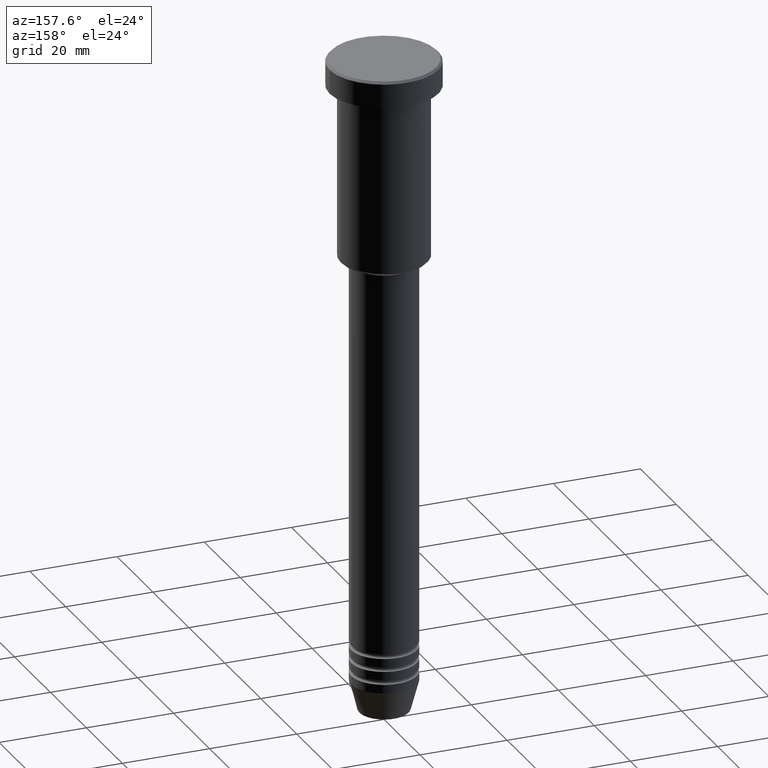
[diagram: clean part render]
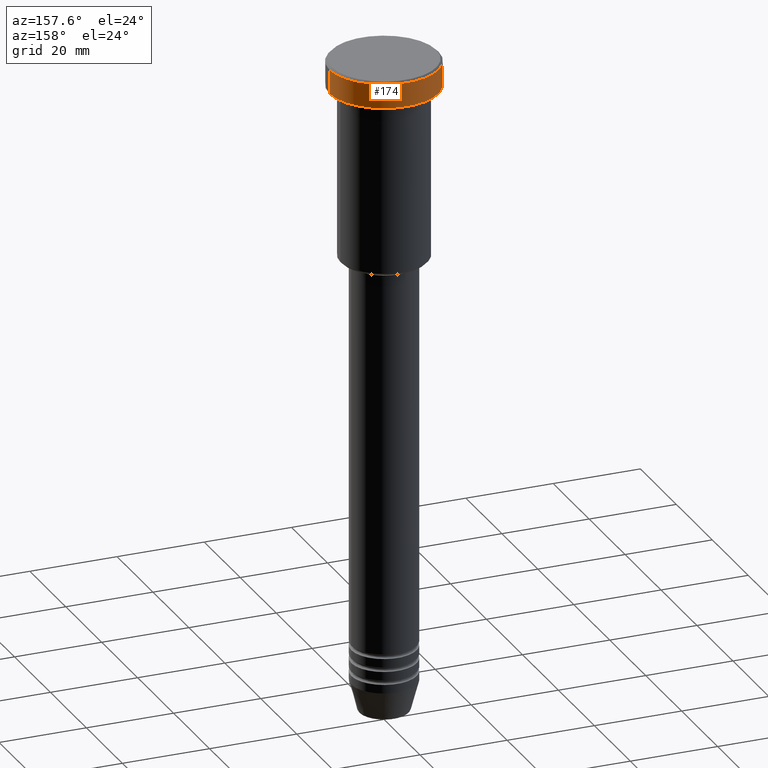
[diagram: same view with one face highlighted and labeled with its STEP entity id]
A machine part, auxiliary view. The second image highlights one B-rep face of the part: STEP entity #174.
In plain terms, the highlighted cylindrical surface (partial cylindrical patch) has radius 12.5 mm, axis along (-0, -0, 1).
Its self-contained STEP definition (entity closure, byte-faithful):
#48 = CARTESIAN_POINT ( 'NONE',  ( 0.000000000000000000, 0.000000000000000000, -0.5000000000000056621 ) ) ;
#56 = CARTESIAN_POINT ( 'NONE',  ( 0.000000000000000000, 0.000000000000000000, -5.999999999999996447 ) ) ;
#59 = DIRECTION ( 'NONE',  ( -0.000000000000000000, -0.000000000000000000, 1.000000000000000000 ) ) ;
#65 = ORIENTED_EDGE ( 'NONE', *, *, #1145, .T. ) ;
#126 = CARTESIAN_POINT ( 'NONE',  ( 12.50000000000000000, 0.000000000000000000, -5.999999999999996447 ) ) ;
#174 = ADVANCED_FACE ( 'NONE', ( #572 ), #924, .T. ) ;
#225 = CARTESIAN_POINT ( 'NONE',  ( -12.50000000000000000, 1.530808498934191521E-15, -5.999999999999996447 ) ) ;
#242 = ORIENTED_EDGE ( 'NONE', *, *, #992, .F. ) ;
#245 = CIRCLE ( 'NONE', #394, 12.50000000000000000 ) ;
#257 = DIRECTION ( 'NONE',  ( -0.000000000000000000, -0.000000000000000000, 1.000000000000000000 ) ) ;
#316 = VERTEX_POINT ( 'NONE', #409 ) ;
#391 = VECTOR ( 'NONE', #59, 1000.000000000000000 ) ;
#394 = AXIS2_PLACEMENT_3D ( 'NONE', #48, #413, #775 ) ;
#409 = CARTESIAN_POINT ( 'NONE',  ( -12.50000000000000000, 1.530808498934191521E-15, -0.5000000000000056621 ) ) ;
#413 = DIRECTION ( 'NONE',  ( 0.000000000000000000, 0.000000000000000000, -1.000000000000000000 ) ) ;
#439 = ORIENTED_EDGE ( 'NONE', *, *, #662, .T. ) ;
#492 = VERTEX_POINT ( 'NONE', #887 ) ;
#512 = CARTESIAN_POINT ( 'NONE',  ( -12.50000000000000000, 1.530808498934191521E-15, 0.000000000000000000 ) ) ;
#521 = ORIENTED_EDGE ( 'NONE', *, *, #559, .T. ) ;
#546 = CARTESIAN_POINT ( 'NONE',  ( 12.50000000000000000, 0.000000000000000000, 0.000000000000000000 ) ) ;
#559 = EDGE_CURVE ( 'NONE', #1061, #316, #1055, .T. ) ;
#567 = CIRCLE ( 'NONE', #958, 12.50000000000000000 ) ;
#572 = FACE_OUTER_BOUND ( 'NONE', #970, .T. ) ;
#662 = EDGE_CURVE ( 'NONE', #1106, #1061, #567, .T. ) ;
#691 = DIRECTION ( 'NONE',  ( 1.000000000000000000, 0.000000000000000000, 0.000000000000000000 ) ) ;
#765 = DIRECTION ( 'NONE',  ( -0.000000000000000000, -0.000000000000000000, 1.000000000000000000 ) ) ;
#775 = DIRECTION ( 'NONE',  ( 1.000000000000000000, 0.000000000000000000, 0.000000000000000000 ) ) ;
#819 = DIRECTION ( 'NONE',  ( -0.000000000000000000, -0.000000000000000000, 1.000000000000000000 ) ) ;
#839 = DIRECTION ( 'NONE',  ( 1.000000000000000000, 0.000000000000000000, 0.000000000000000000 ) ) ;
#887 = CARTESIAN_POINT ( 'NONE',  ( 12.50000000000000000, 0.000000000000000000, -0.5000000000000056621 ) ) ;
#909 = VECTOR ( 'NONE', #819, 1000.000000000000000 ) ;
#924 = CYLINDRICAL_SURFACE ( 'NONE', #1031, 12.50000000000000000 ) ;
#958 = AXIS2_PLACEMENT_3D ( 'NONE', #56, #257, #691 ) ;
#970 = EDGE_LOOP ( 'NONE', ( #439, #521, #65, #242 ) ) ;
#992 = EDGE_CURVE ( 'NONE', #1106, #492, #1116, .T. ) ;
#1028 = CARTESIAN_POINT ( 'NONE',  ( 0.000000000000000000, 0.000000000000000000, 0.000000000000000000 ) ) ;
#1031 = AXIS2_PLACEMENT_3D ( 'NONE', #1028, #765, #839 ) ;
#1055 = LINE ( 'NONE', #512, #391 ) ;
#1061 = VERTEX_POINT ( 'NONE', #225 ) ;
#1106 = VERTEX_POINT ( 'NONE', #126 ) ;
#1116 = LINE ( 'NONE', #546, #909 ) ;
#1145 = EDGE_CURVE ( 'NONE', #316, #492, #245, .T. ) ;